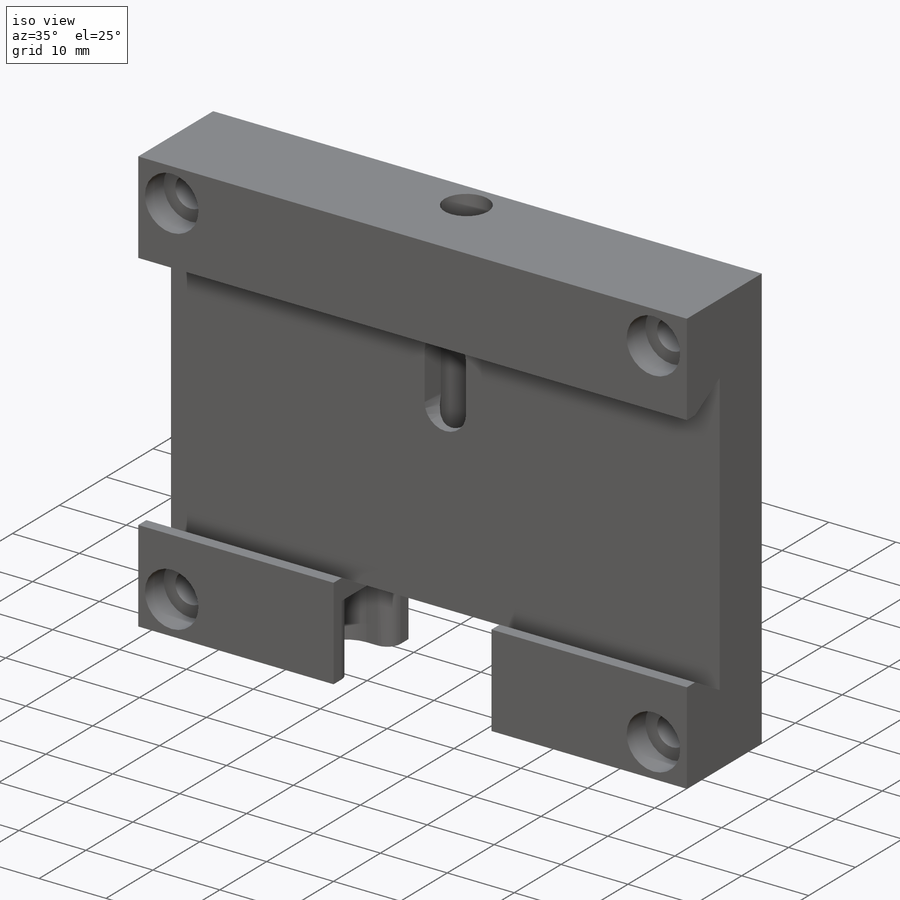
[diagram: iso view]
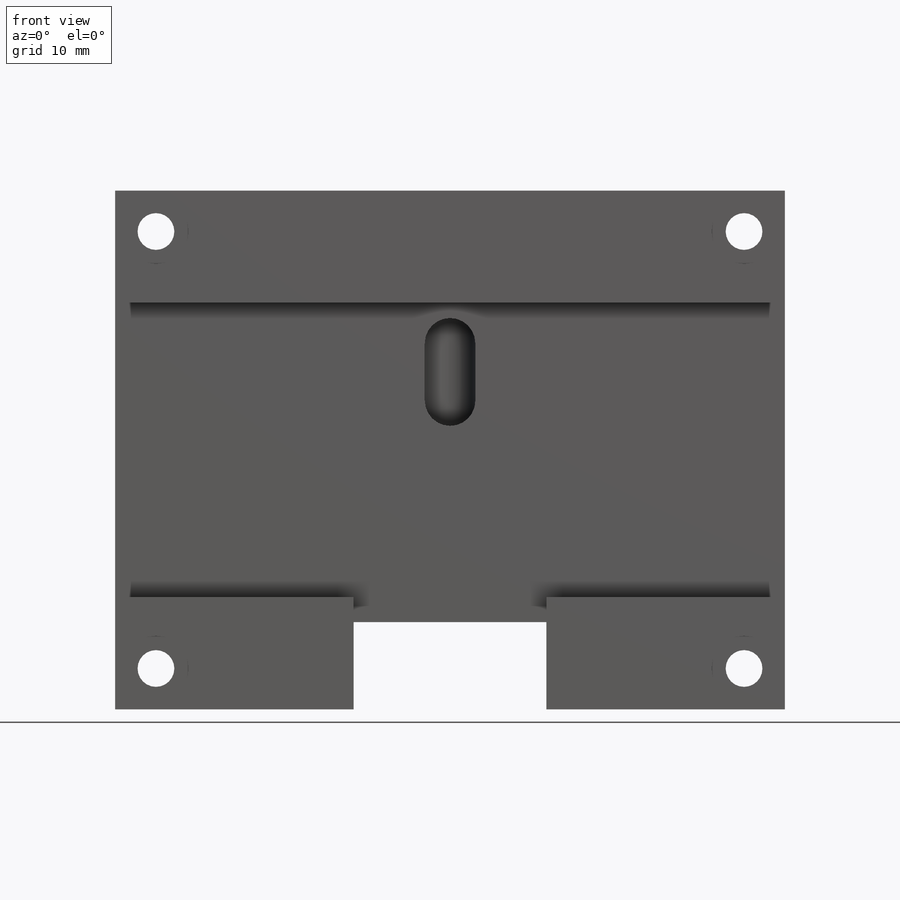
[diagram: front view]
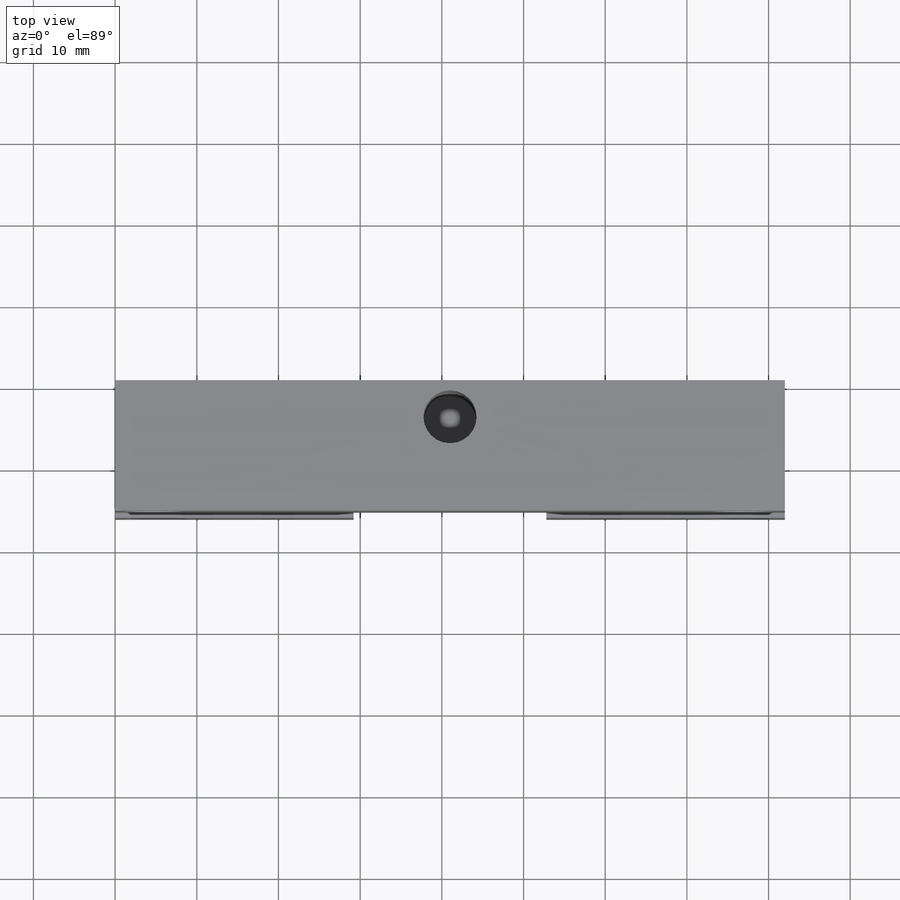
[diagram: top view]
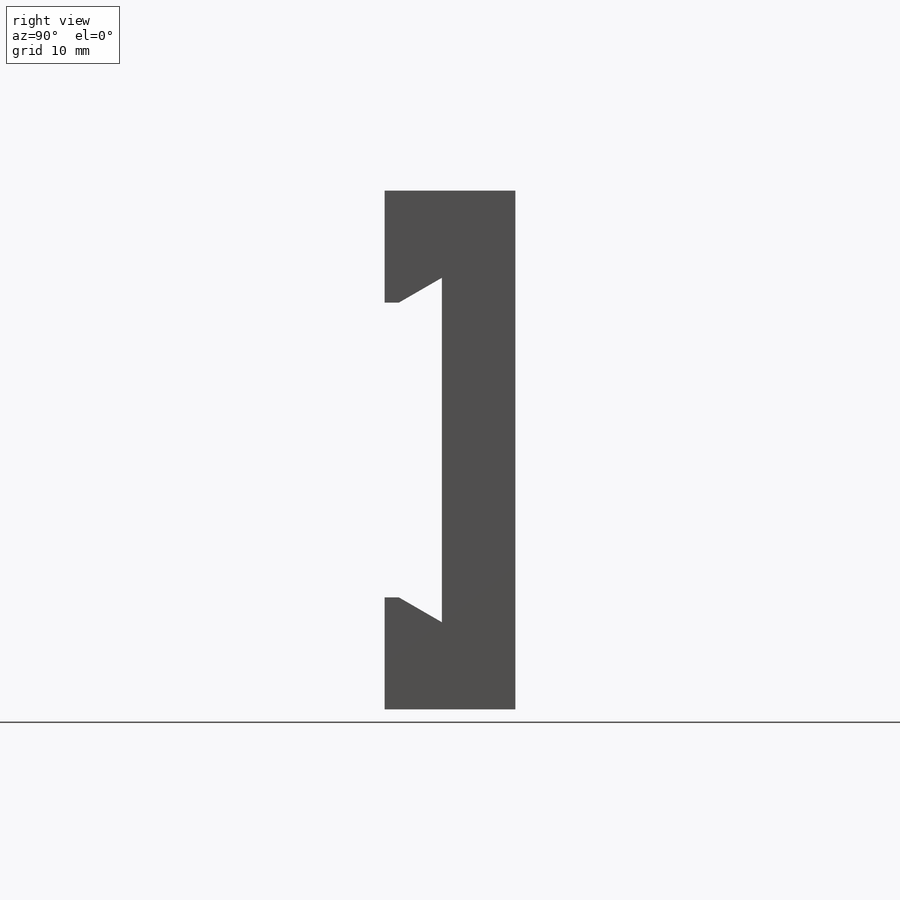
[diagram: right view]
SOLIDWORKS PART (.sldprt)
format: sldprt  version: not decoded by parser v0  size: 1,243,648 bytes
history: native  units: mm
features: sketch x25, thread x17, cut_extrude x9, hole x6, plane x4, chamfer x2, material x1, extrude x1 (+8 scaffold rows collapsed)
feature tree (73):
  scaffold x8  (default folders/planes/origin — collapsed)
  material  "Сплав 2024"
  plane  "Спереди"
  plane  "Сверху"
  plane  "Справа"
  sketch  "Эскиз1"  dims[c1.D1=~45.059989mm c1.D2=~61.728048mm c2.D1=63.5mm c2.D2=80.0mm]
  extrude  "Бобышка-Вытянуть1"  Depth=16mm
  sketch  "Эскиз2"  dims[c1.D1=~39.784709mm c1.D2=~15.067506mm c2.D1=32.0mm c2.D2=30.0mm c3.D2=60.0deg c3.D3=~19.970042mm c4.D3=60.0deg c4.D4=7.0mm c4.D1=42.16mm]
  cut_extrude  "Вырез-Вытянуть1"  [1 undecoded]
  plane  "Плоскость1"  Offset=5mm
  sketch  "Эскиз3"  dims[c1.D1=8.0mm c1.D2=8.0mm c1.D3=8.0mm c2.D1=~40.503723mm c2.D2=3.0mm c2.D3=~6.911956mm c2.D4=~17.744126mm]
  sketch  "Эскиз5"  dims[D1=8.0mm D2=8.0mm D3=~4.490482mm D4=~16.543252mm]
  sketch  "Эскиз7"  dims[c1.D5=~5.281266mm c1.D3=8.0mm c1.D1=20.0mm c1.D2=20.0mm c2.D3=~4.229808mm c2.D4=~6.57653mm c3.D3=8.0mm c3.D4=20.0mm]
  cut_extrude  "Вырез-Вытянуть2"  Depth=5mm
  hole  "Отверстие обработанное метчиком M8x1.01"  [1 undecoded]
  sketch  "Эскиз9"
  sketch  "Эскиз8"  dims[hole-wizard template sketch: 59 standard entries collapsed; hole parameters kept: c18.Диаметр проходного сверла=7.0mm c18.Глубина проходного сверла=10.0mm]
  thread  "Отверстие резьбы1"  Diameter=8mm  [1 undecoded]
  thread  "Отверстие резьбы2"  Diameter=8mm  [1 undecoded]
  thread  "Отверстие резьбы3"  Diameter=8mm  [1 undecoded]
  thread  "Отверстие резьбы4"  Diameter=8mm  [1 undecoded]
  sketch  "Эскиз10"  dims[c1.D3=~5.573046mm c1.D1=~5.943105mm c2.D1=45.0deg c2.D2=~5.54458mm c3.D2=30.0deg c4.D2=5.0mm c4.D1=5.0mm]
  cut_extrude  "Вырез-Вытянуть3"  [1 undecoded]
  sketch  "Эскиз11"  dims[c1.D1=7.0mm c1.D2=7.0mm c1.D3=15.0mm c1.D4=15.0mm c1.D5=~15.833759mm c1.D6=~32.819806mm c2.D5=45.0mm c2.D6=40.0mm c2.D3=15.0mm c2.D1=25.0mm c2.D2=25.0mm c3.D3=5.0mm c3.D4=5.0mm c3.D1=5.0mm c3.D2=5.0mm]
  hole  "Отверстие обработанное метчиком M4x0.71"  [1 undecoded]
  sketch  "Эскиз13"
  sketch  "Эскиз12"  dims[hole-wizard template sketch: 60 standard entries collapsed; hole parameters kept: c18.Глубина проходного сверла=16.0mm]
  thread  "Отверстие резьбы5"  Diameter=4mm  [1 undecoded]
  thread  "Отверстие резьбы6"  Diameter=4mm  [1 undecoded]
  thread  "Отверстие резьбы7"  Diameter=4mm  [1 undecoded]
  thread  "Отверстие резьбы8"  Diameter=4mm  [1 undecoded]
  sketch  "Эскиз15"  dims[c1.D1=~9.30043mm c1.D2=~9.300455mm c2.D1=25.0mm]
  cut_extrude  "Вырез-Вытянуть4"  [1 undecoded]
  sketch  "Эскиз16"  dims[D1=~9.713782mm D2=~13.227303mm]
  cut_extrude  "Вырез-Вытянуть5"  [1 undecoded]
  sketch  "Эскиз17"  dims[D1=8.0mm D2=7.5mm D3=5.0mm]
  cut_extrude  "Вырез-Вытянуть6"  Depth=4mm
  hole  "Отверстие обработанное метчиком M4x0.72"  [1 undecoded]
  sketch  "Эскиз19"
  sketch  "Эскиз18"  dims[hole-wizard template sketch: 50 standard entries collapsed; hole parameters above]
  thread  "Отверстие резьбы9"  Diameter=8mm  [1 undecoded]
  hole  "Отверстие обработанное метчиком 3/8-161"  [1 undecoded]
  sketch  "Эскиз21"
  sketch  "Эскиз20"  dims[hole-wizard template sketch: 46 standard entries collapsed; hole parameters kept: c15.Диаметр сверла=7.9375mm c15.Глубина сверла=8.0mm c15.D3=~14.816244mm c15.Угол заточки сверла=118.0deg]
  thread  "Отверстие резьбы10"  Diameter=8mm  [1 undecoded]
  thread  "Отверстие резьбы11"  Diameter=8mm  [1 undecoded]
  thread  "Отверстие резьбы12"  Diameter=8mm  [1 undecoded]
  thread  "Отверстие резьбы13"  Diameter=8mm  [1 undecoded]
  chamfer  "Фаска1"  Distance=4mm Angle=45deg
  hole  "Отверстие обработанное метчиком 1/4-201"  [1 undecoded]
  sketch  "Эскиз23"
  sketch  "Эскиз22"  dims[hole-wizard template sketch: 47 standard entries collapsed; hole parameters kept: c15.Глубина сверла=9.0mm c15.D3=~14.816244mm c15.Угол заточки сверла=118.0deg]
  thread  "Отверстие резьбы14"  Diameter=9mm  [1 undecoded]
  thread  "Отверстие резьбы15"  Diameter=9mm  [1 undecoded]
  thread  "Отверстие резьбы16"  Diameter=9mm  [1 undecoded]
  thread  "Отверстие резьбы17"  Diameter=9mm  [1 undecoded]
  sketch  "Эскиз25"  dims[c1.D1=3.1mm c1.D2=3.0mm c2.D1=~8.905397mm c2.D2=4.0mm c2.D3=7.0mm]
  cut_extrude  "Вырез-Вытянуть7"  Depth=4mm
  sketch  "Эскиз26"  dims[c1.D2=6.5mm c1.D1=9.0mm c2.D2=~0.717341mm c2.D3=4.5mm]
  cut_extrude  "Вырез-Вытянуть8"  Depth=36mm
  sketch  "Эскиз27"  dims[c1.D1=63.5mm c1.D2=~11.502804mm c2.D1=63.5mm c2.D2=~10.482394mm c3.D1=10.0mm c3.D2=63.5mm]
  cut_extrude  "Вырез-Вытянуть9"  Depth=5mm
  hole  "Цековка для винта с внутренним шестигранником M41"  [1 undecoded]
  sketch  "Эскиз29"
  sketch  "Эскиз28"  dims[hole-wizard template sketch: 42 standard entries collapsed; hole parameters kept: c12.Глубина сквозного отверстия=16.0mm c12.Диаметр цековки=8.0mm c12.Глубина цековки=4.0mm]
  chamfer  "Фаска2"  Distance=1mm Angle=90deg
decode coverage: 44 of 60 modeling features carry decoded parameters
note: ~ marks probable driven/reference dimensions
note: 27 parameter values undecoded
summary: no parameter record found for 10 features
note: suppression state not decoded; provenance and decode notes live in map.json
